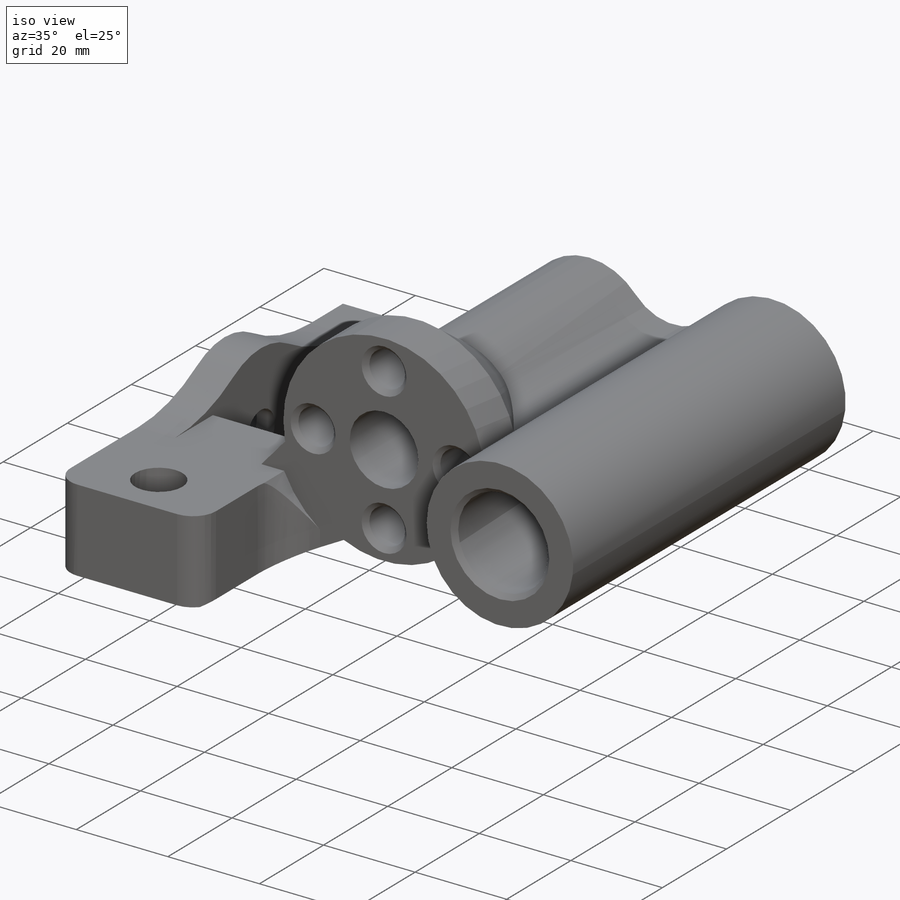
[diagram: iso view]
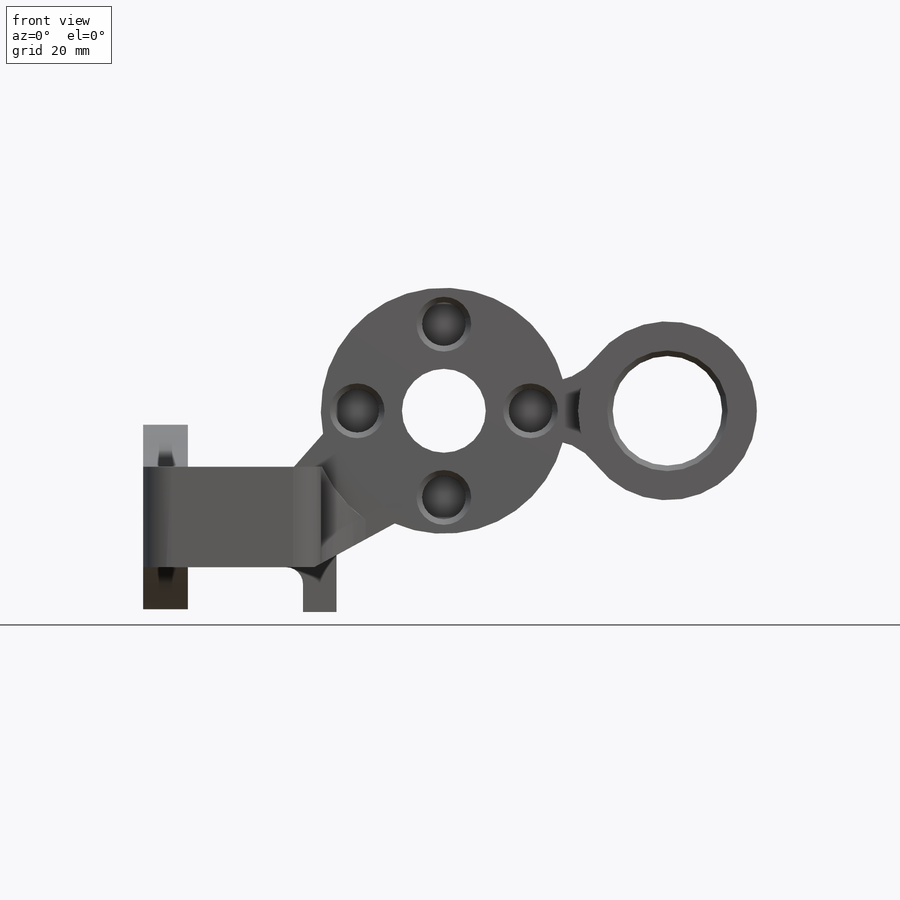
[diagram: front view]
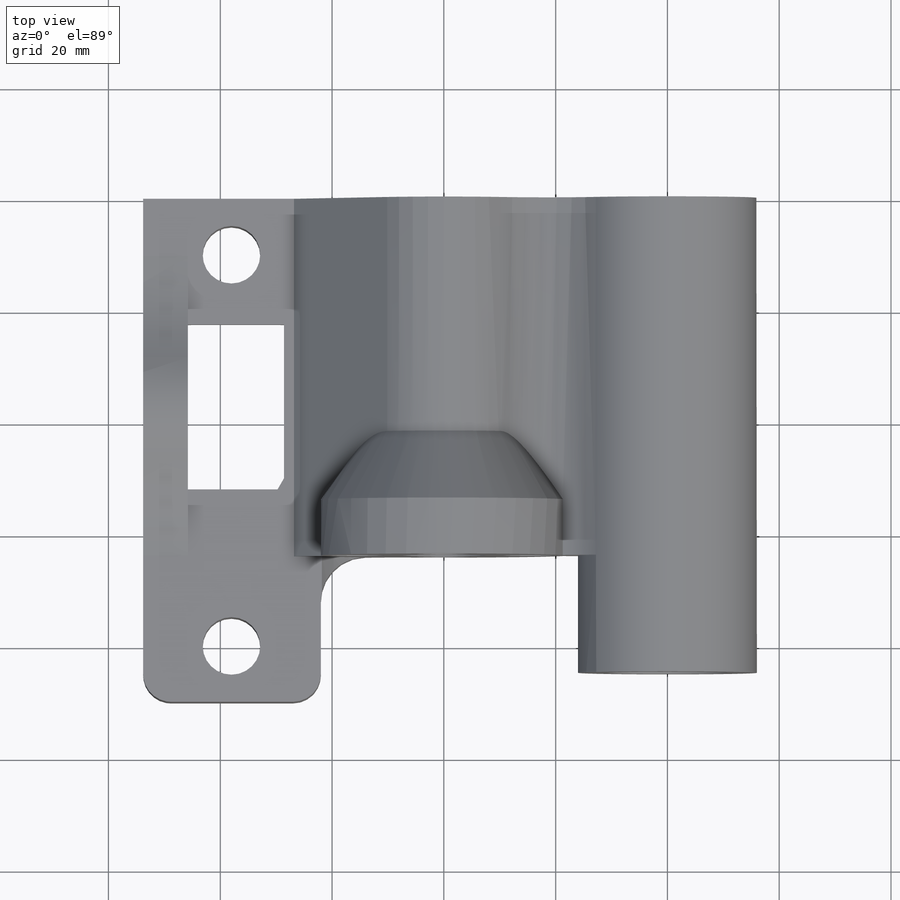
[diagram: top view]
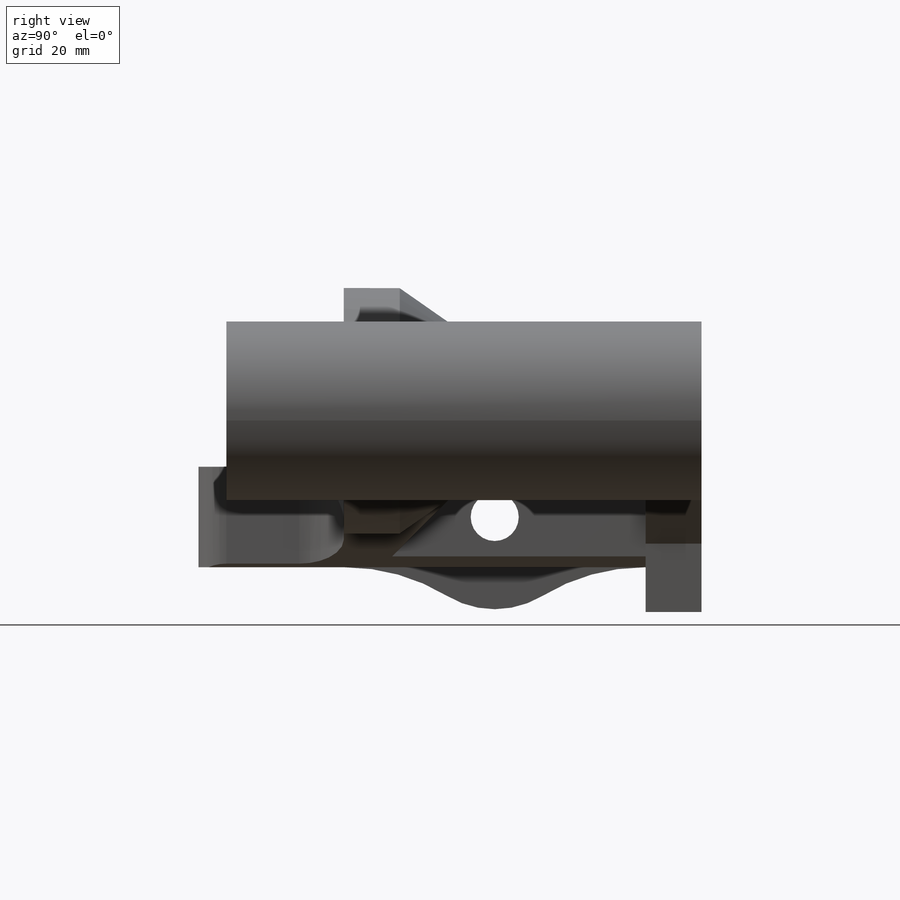
[diagram: right view]
SOLIDWORKS PART (.sldprt)
format: sldprt  version: not decoded by parser v0  size: 599,552 bytes
history: native  units: mm
features: sketch x18, cut_extrude x10, extrude x4, fillet x4, chamfer x4, material x1, revolve x1, hole x1 (+11 scaffold rows collapsed)
feature tree (54):
  scaffold x11  (default folders/planes/origin — collapsed)
  material  "Material <not specified>"
  sketch  "Sketch1"  dims[D1=15.0mm D2=27.0mm D3=19.6mm D4=32.0mm D6=11.0mm D5=40.0mm D7=38.0mm D8=8.8mm D9=17.6mm D10=18.0mm D11=10.0mm D12=7.0mm D13=6.0mm D14=8.0mm D15=27.0mm]
  extrude  "Boss-Extrude1"  Depth=90mm
  sketch  "Sketch2"  dims[c1.D4=10.3mm c1.D1=38.0mm c1.D2=10.0mm c1.D3=70.0mm c1.D5=20.0mm c1.D6=20.0mm c1.D7=17.2mm c1.D8=~13.808865mm c2.D8=30.0deg c2.D9=20.0mm c2.D10=8.0mm]
  cut_extrude  "Cut-Extrude1"  [1 undecoded]
  sketch  "Sketch3"  dims[D1=8.6mm D2=37.0mm]
  cut_extrude  "Cut-Extrude2"  Depth=80mm
  sketch  "Sketch8"  dims[D1=48.0mm]
  cut_extrude  "Cut-Extrude5"  Depth=26mm
  sketch  "Sketch9"  dims[c1.D1=10.0mm c1.D2=~15.197911mm c2.D2=35.0deg c2.D3=44.0mm c2.D4=18.0mm]
  revolve  "Revolve1"  Angle=360deg
  sketch  "Sketch4"  dims[c1.D1=17.0mm c1.D2=~8.719071mm c2.D2=45.0deg c2.D3=10.0mm c2.D4=8.0mm]
  cut_extrude  "Cut-Extrude3"  Depth=40mm
  sketch  "Sketch10"  dims[c1.D1=7.8mm c1.D2=31.0mm c1.D3=~18.410444mm c2.D3=120.0deg c2.D4=~18.410444mm c3.D4=120.0deg]
  cut_extrude  "Cut-Extrude6"  Depth=11mm
  sketch  "Sketch11"  dims[D1=8.0mm D2=16.0mm]
  cut_extrude  "Cut-Extrude7"  [1 undecoded]
  hole  "CSK for M8 Flat Head Machine Screw1"  Diameter=8mm Depth=10mm
  sketch  "Sketch6"
  sketch  "Sketch5"  dims[hole-wizard template sketch: 39 standard entries collapsed; hole parameters kept: c13.Hole Dia.=8.0mm c13.Hole Depth=10.0mm c13.Near C'Sink Dia.=16.8mm c13.D4=~33.297463mm c13.Near C'Sink Angle=90.0deg c14.D5=~14.816244mm c14.Drill Angle=118.0deg]
  sketch  "Sketch7"  dims[D1=5.0mm D2=10.0mm D3=70.0mm]
  cut_extrude  "Cut-Extrude4"  Depth=17mm
  fillet  "Fillet1"  Radius=5mm
  sketch  "Sketch15"  dims[D1=0.0mm]
  cut_extrude  "Cut-Extrude9"  Depth=5mm
  sketch  "Sketch14"  dims[D1=14.0mm D2=10.0mm]
  cut_extrude  "Cut-Extrude8"  Depth=10mm
  chamfer  "Chamfer1"  Distance=1mm Angle=45deg
  sketch  "Sketch16"  dims[D1=22.0mm D2=2.0mm]
  sketch  "Sketch17"  dims[D1=18.0mm D2=2.5mm]
  extrude  "Boss-Extrude2"  Depth=4mm
  chamfer  "Chamfer2"  Distance=1mm Angle=45deg
  sketch  "Sketch18"  dims[D1=9.0mm]
  cut_extrude  "Cut-Extrude10"  Depth=3.7mm
  fillet  "Fillet2"  Radius=3mm
  sketch  "Sketch20"  dims[D1=33.0mm D2=17.8mm]
  extrude  "Boss-Extrude3"  [1 undecoded]
  fillet  "Fillet3"  Radius=35mm
  chamfer  "Chamfer3"  Distance=1mm Angle=45deg
  sketch  "Sketch21"  dims[D1=4.0mm D2=6.0mm D3=8.0mm]
  extrude  "Boss-Extrude4"  Depth=10mm
  fillet  "Fillet4"  Radius=3mm
  chamfer  "Chamfer5"  Distance=1mm Angle=60deg
decode coverage: 38 of 42 modeling features carry decoded parameters
note: ~ marks probable driven/reference dimensions
note: 3 parameter values undecoded
summary: no parameter record found for 3 features
note: suppression state not decoded; provenance and decode notes live in map.json
